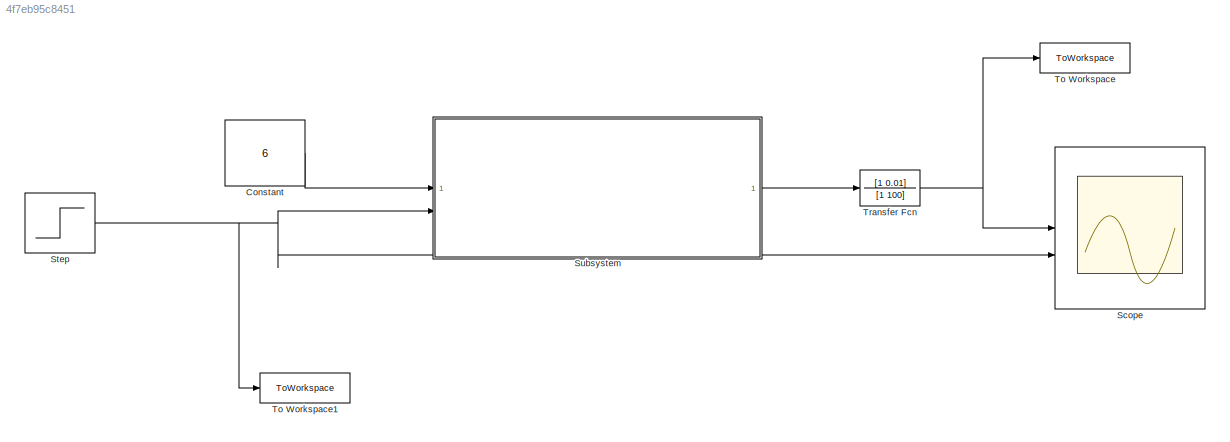
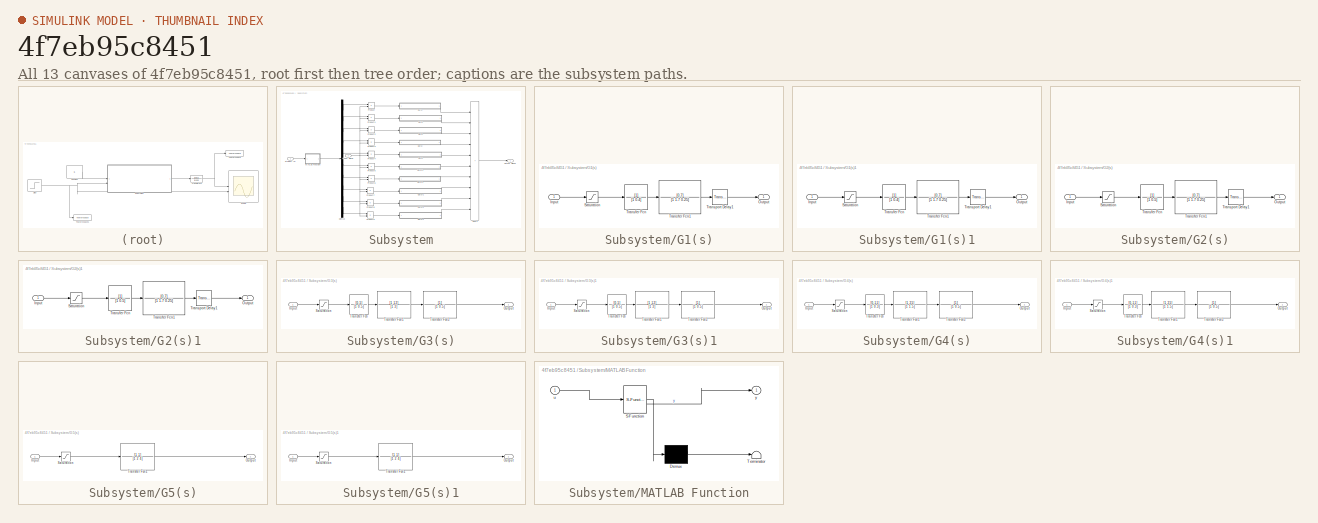
[diagram: thumbnail index - all 13 canvases of the model, root first then tree order]
MODEL slx_4f7eb95c8451
KIND model
CONFIG AbsTol = auto
CONFIG EnableMultiTasking = off
CONFIG FixedStep = auto
CONFIG MaxStep = 0.001
CONFIG MinStep = auto
CONFIG RelTol = 1e-3
CONFIG SampleTimeConstraint = Unconstrained
CONFIG SolverName = ode45
CONFIG StartTime = 0.0
CONFIG StopTime = 500
BLOCK [Constant] Constant
  Value = 6
BLOCK [Scope] Scope
  Floating = off
  NumInputPorts = 2
  ScopeSpecificationString = Simulink.scopes.TimeScopeBlockCfg('CurrentConfiguration', extmgr.ConfigurationSet(extmgr.Configuration('Core','General UI',true),extmgr.Configuration('Core','Source UI',true),extmgr.Configuration('Sources','WiredSimulink',true),extmgr.Configuration('Visuals','Time Domain',true,'SerializedDisplays',{struct('MinYLimReal','-0.71869','MaxYLimReal','5.61644','YLabelReal','','MinYLimMag','0.00000','MaxY...<+1996ch>
BLOCK [Step] Step
  SampleTime = 0
  Time = 0
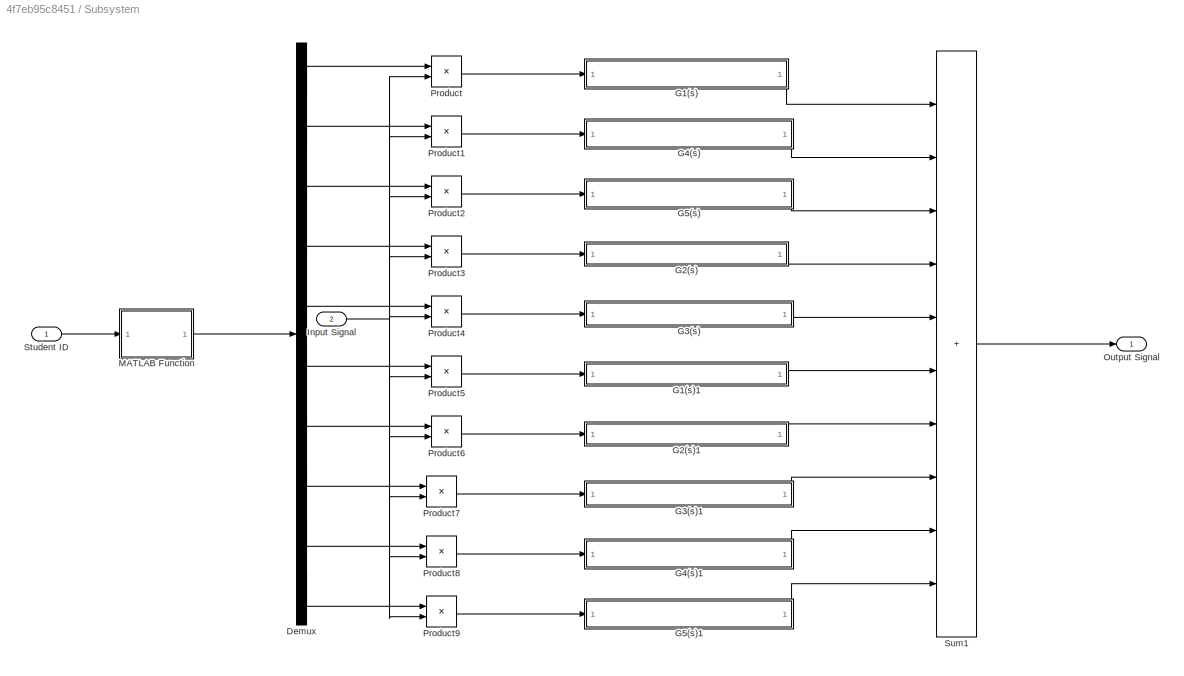
BLOCK [SubSystem] Subsystem
  Permissions = NoReadOrWrite
BLOCK [Demux] Subsystem/Demux
  Outputs = 10
BLOCK [SubSystem] Subsystem/G1(s)
  Permissions = NoReadOrWrite
BLOCK [Inport] Subsystem/G1(s)/Input
BLOCK [Outport] Subsystem/G1(s)/Output
BLOCK [Saturate] Subsystem/G1(s)/Saturation
  LowerLimit = -2
  UpperLimit = 2.8
BLOCK [TransferFcn] Subsystem/G1(s)/Transfer Fcn
  Denominator = [1 0.4]
BLOCK [TransferFcn] Subsystem/G1(s)/Transfer Fcn1
  Denominator = [1 1.7 0.25]
  Numerator = [0.7]
BLOCK [TransportDelay] Subsystem/G1(s)/Transport Delay1
  DelayTime = 0.1
BLOCK [SubSystem] Subsystem/G1(s)1
  Permissions = NoReadOrWrite
BLOCK [Inport] Subsystem/G1(s)1/Input
BLOCK [Outport] Subsystem/G1(s)1/Output
BLOCK [Saturate] Subsystem/G1(s)1/Saturation
  LowerLimit = -2
  UpperLimit = 2.8
BLOCK [TransferFcn] Subsystem/G1(s)1/Transfer Fcn
  Denominator = [1 0.4]
BLOCK [TransferFcn] Subsystem/G1(s)1/Transfer Fcn1
  Denominator = [1 1.7 0.25]
  Numerator = [0.7]
BLOCK [TransportDelay] Subsystem/G1(s)1/Transport Delay1
  DelayTime = 0.1
BLOCK [SubSystem] Subsystem/G2(s)
  Permissions = NoReadOrWrite
BLOCK [Inport] Subsystem/G2(s)/Input
BLOCK [Outport] Subsystem/G2(s)/Output
BLOCK [Saturate] Subsystem/G2(s)/Saturation
  LowerLimit = -2
  UpperLimit = 2.8
BLOCK [TransferFcn] Subsystem/G2(s)/Transfer Fcn
  Denominator = [1 0.5]
BLOCK [TransferFcn] Subsystem/G2(s)/Transfer Fcn1
  Denominator = [1 1.7 0.25]
  Numerator = [0.7]
BLOCK [TransportDelay] Subsystem/G2(s)/Transport Delay1
  DelayTime = 0.15
BLOCK [SubSystem] Subsystem/G2(s)1
  Permissions = NoReadOrWrite
BLOCK [Inport] Subsystem/G2(s)1/Input
BLOCK [Outport] Subsystem/G2(s)1/Output
BLOCK [Saturate] Subsystem/G2(s)1/Saturation
  LowerLimit = -2
  UpperLimit = 2.8
BLOCK [TransferFcn] Subsystem/G2(s)1/Transfer Fcn
  Denominator = [1 0.5]
BLOCK [TransferFcn] Subsystem/G2(s)1/Transfer Fcn1
  Denominator = [1 1.7 0.25]
  Numerator = [0.7]
BLOCK [TransportDelay] Subsystem/G2(s)1/Transport Delay1
  DelayTime = 0.15
BLOCK [SubSystem] Subsystem/G3(s)
  Permissions = NoReadOrWrite
BLOCK [Inport] Subsystem/G3(s)/Input
BLOCK [Outport] Subsystem/G3(s)/Output
BLOCK [Saturate] Subsystem/G3(s)/Saturation
  LowerLimit = -2
  UpperLimit = 2.8
BLOCK [TransferFcn] Subsystem/G3(s)/Transfer Fcn
  Denominator = [1 0.5]
  Numerator = [0.5]
BLOCK [TransferFcn] Subsystem/G3(s)/Transfer Fcn1
  Denominator = [1 2]
  Numerator = [1 12]
BLOCK [TransferFcn] Subsystem/G3(s)/Transfer Fcn2
  Denominator = [1 0.5]
BLOCK [SubSystem] Subsystem/G3(s)1
  Permissions = NoReadOrWrite
BLOCK [Inport] Subsystem/G3(s)1/Input
BLOCK [Outport] Subsystem/G3(s)1/Output
BLOCK [Saturate] Subsystem/G3(s)1/Saturation
  LowerLimit = -2
  UpperLimit = 2.8
BLOCK [TransferFcn] Subsystem/G3(s)1/Transfer Fcn
  Denominator = [1 0.5]
  Numerator = [0.5]
BLOCK [TransferFcn] Subsystem/G3(s)1/Transfer Fcn1
  Denominator = [1 2]
  Numerator = [1 12]
BLOCK [TransferFcn] Subsystem/G3(s)1/Transfer Fcn2
  Denominator = [1 0.5]
BLOCK [SubSystem] Subsystem/G4(s)
  Permissions = NoReadOrWrite
BLOCK [Inport] Subsystem/G4(s)/Input
BLOCK [Outport] Subsystem/G4(s)/Output
BLOCK [Saturate] Subsystem/G4(s)/Saturation
  LowerLimit = -2
  UpperLimit = 2.8
BLOCK [TransferFcn] Subsystem/G4(s)/Transfer Fcn
  Denominator = [1 0.3]
  Numerator = [0.11]
BLOCK [TransferFcn] Subsystem/G4(s)/Transfer Fcn1
  Denominator = [1 1.5]
  Numerator = [1 25]
BLOCK [TransferFcn] Subsystem/G4(s)/Transfer Fcn2
  Denominator = [1 0.5]
BLOCK [SubSystem] Subsystem/G4(s)1
  Permissions = NoReadOrWrite
BLOCK [Inport] Subsystem/G4(s)1/Input
BLOCK [Outport] Subsystem/G4(s)1/Output
BLOCK [Saturate] Subsystem/G4(s)1/Saturation
  LowerLimit = -2
  UpperLimit = 2.8
BLOCK [TransferFcn] Subsystem/G4(s)1/Transfer Fcn
  Denominator = [1 0.3]
  Numerator = [0.11]
BLOCK [TransferFcn] Subsystem/G4(s)1/Transfer Fcn1
  Denominator = [1 1.5]
  Numerator = [1 25]
BLOCK [TransferFcn] Subsystem/G4(s)1/Transfer Fcn2
  Denominator = [1 0.5]
BLOCK [SubSystem] Subsystem/G5(s)
  Permissions = NoReadOrWrite
BLOCK [Inport] Subsystem/G5(s)/Input
BLOCK [Outport] Subsystem/G5(s)/Output
BLOCK [Saturate] Subsystem/G5(s)/Saturation
  LowerLimit = -2
  UpperLimit = 2.8
BLOCK [TransferFcn] Subsystem/G5(s)/Transfer Fcn1
  Denominator = [1 2 4]
  Numerator = [1 1]
BLOCK [SubSystem] Subsystem/G5(s)1
  Permissions = NoReadOrWrite
BLOCK [Inport] Subsystem/G5(s)1/Input
BLOCK [Outport] Subsystem/G5(s)1/Output
BLOCK [Saturate] Subsystem/G5(s)1/Saturation
  LowerLimit = -2
  UpperLimit = 2.8
BLOCK [TransferFcn] Subsystem/G5(s)1/Transfer Fcn1
  Denominator = [1 2 4]
  Numerator = [1 1]
BLOCK [Inport] Subsystem/Input Signal
  Port = 2
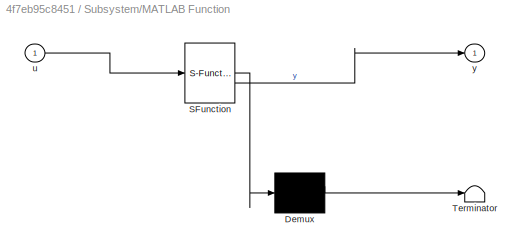
BLOCK [SubSystem] Subsystem/MATLAB Function
  ErrorFcn = Stateflow.Translate.translate
  LibrarySourceBlock = simulink/User-Defined\nFunctions/MATLAB Function
  PermitHierarchicalResolution = ExplicitOnly
  SFBlockType = MATLAB Function
  TreatAsAtomicUnit = on
BLOCK [Demux] Subsystem/MATLAB Function/ Demux 
  Outputs = 1
BLOCK [S-Function] Subsystem/MATLAB Function/ SFunction 
  EnableBusSupport = on
  FunctionName = sf_sfun
  PortCounts = [1 2]
  SFcnIsStateOwnerBlock = off
  SFunctionDeploymentMode = off
  Tag = Stateflow S-Function 2
BLOCK [Terminator] Subsystem/MATLAB Function/ Terminator 
BLOCK [Inport] Subsystem/MATLAB Function/u
BLOCK [Outport] Subsystem/MATLAB Function/y
BLOCK [Outport] Subsystem/Output Signal
BLOCK [Product] Subsystem/Product
BLOCK [Product] Subsystem/Product1
BLOCK [Product] Subsystem/Product2
BLOCK [Product] Subsystem/Product3
BLOCK [Product] Subsystem/Product4
BLOCK [Product] Subsystem/Product5
BLOCK [Product] Subsystem/Product6
BLOCK [Product] Subsystem/Product7
BLOCK [Product] Subsystem/Product8
BLOCK [Product] Subsystem/Product9
BLOCK [Inport] Subsystem/Student ID
BLOCK [Sum] Subsystem/Sum1
  IconShape = rectangular
  Inputs = ++++++++++
BLOCK [ToWorkspace] To Workspace
  FixptAsFi = on
  MaxDataPoints = inf
  SampleTime = -1
  Save2DSignal = 2-D array (concatenate along first dimension)
  VariableName = sigout
BLOCK [ToWorkspace] To Workspace1
  FixptAsFi = on
  MaxDataPoints = inf
  SampleTime = -1
  Save2DSignal = 2-D array (concatenate along first dimension)
  VariableName = sigin
BLOCK [TransferFcn] Transfer Fcn
  Denominator = [1 100]
  Numerator = [1 0.01]
LINE Constant:1 -> Subsystem:1
NET Step:1 -> Scope:2, Subsystem:2, To Workspace1:1
LINE Subsystem/Demux:1 -> Subsystem/Product:1
LINE Subsystem/Demux:10 -> Subsystem/Product9:1
LINE Subsystem/Demux:2 -> Subsystem/Product1:1
LINE Subsystem/Demux:3 -> Subsystem/Product2:1
LINE Subsystem/Demux:4 -> Subsystem/Product3:1
LINE Subsystem/Demux:5 -> Subsystem/Product4:1
LINE Subsystem/Demux:6 -> Subsystem/Product5:1
LINE Subsystem/Demux:7 -> Subsystem/Product6:1
LINE Subsystem/Demux:8 -> Subsystem/Product7:1
LINE Subsystem/Demux:9 -> Subsystem/Product8:1
LINE Subsystem/G1(s)/Input:1 -> Subsystem/G1(s)/Saturation:1
LINE Subsystem/G1(s)/Saturation:1 -> Subsystem/G1(s)/Transfer Fcn:1
LINE Subsystem/G1(s)/Transfer Fcn1:1 -> Subsystem/G1(s)/Transport Delay1:1
LINE Subsystem/G1(s)/Transfer Fcn:1 -> Subsystem/G1(s)/Transfer Fcn1:1
LINE Subsystem/G1(s)/Transport Delay1:1 -> Subsystem/G1(s)/Output:1
LINE Subsystem/G1(s)1/Input:1 -> Subsystem/G1(s)1/Saturation:1
LINE Subsystem/G1(s)1/Saturation:1 -> Subsystem/G1(s)1/Transfer Fcn:1
LINE Subsystem/G1(s)1/Transfer Fcn1:1 -> Subsystem/G1(s)1/Transport Delay1:1
LINE Subsystem/G1(s)1/Transfer Fcn:1 -> Subsystem/G1(s)1/Transfer Fcn1:1
LINE Subsystem/G1(s)1/Transport Delay1:1 -> Subsystem/G1(s)1/Output:1
LINE Subsystem/G1(s)1:1 -> Subsystem/Sum1:6
LINE Subsystem/G1(s):1 -> Subsystem/Sum1:1
LINE Subsystem/G2(s)/Input:1 -> Subsystem/G2(s)/Saturation:1
LINE Subsystem/G2(s)/Saturation:1 -> Subsystem/G2(s)/Transfer Fcn:1
LINE Subsystem/G2(s)/Transfer Fcn1:1 -> Subsystem/G2(s)/Transport Delay1:1
LINE Subsystem/G2(s)/Transfer Fcn:1 -> Subsystem/G2(s)/Transfer Fcn1:1
LINE Subsystem/G2(s)/Transport Delay1:1 -> Subsystem/G2(s)/Output:1
LINE Subsystem/G2(s)1/Input:1 -> Subsystem/G2(s)1/Saturation:1
LINE Subsystem/G2(s)1/Saturation:1 -> Subsystem/G2(s)1/Transfer Fcn:1
LINE Subsystem/G2(s)1/Transfer Fcn1:1 -> Subsystem/G2(s)1/Transport Delay1:1
LINE Subsystem/G2(s)1/Transfer Fcn:1 -> Subsystem/G2(s)1/Transfer Fcn1:1
LINE Subsystem/G2(s)1/Transport Delay1:1 -> Subsystem/G2(s)1/Output:1
LINE Subsystem/G2(s)1:1 -> Subsystem/Sum1:7
LINE Subsystem/G2(s):1 -> Subsystem/Sum1:4
LINE Subsystem/G3(s)/Input:1 -> Subsystem/G3(s)/Saturation:1
LINE Subsystem/G3(s)/Saturation:1 -> Subsystem/G3(s)/Transfer Fcn:1
LINE Subsystem/G3(s)/Transfer Fcn1:1 -> Subsystem/G3(s)/Transfer Fcn2:1
LINE Subsystem/G3(s)/Transfer Fcn2:1 -> Subsystem/G3(s)/Output:1
LINE Subsystem/G3(s)/Transfer Fcn:1 -> Subsystem/G3(s)/Transfer Fcn1:1
LINE Subsystem/G3(s)1/Input:1 -> Subsystem/G3(s)1/Saturation:1
LINE Subsystem/G3(s)1/Saturation:1 -> Subsystem/G3(s)1/Transfer Fcn:1
LINE Subsystem/G3(s)1/Transfer Fcn1:1 -> Subsystem/G3(s)1/Transfer Fcn2:1
LINE Subsystem/G3(s)1/Transfer Fcn2:1 -> Subsystem/G3(s)1/Output:1
LINE Subsystem/G3(s)1/Transfer Fcn:1 -> Subsystem/G3(s)1/Transfer Fcn1:1
LINE Subsystem/G3(s)1:1 -> Subsystem/Sum1:8
LINE Subsystem/G3(s):1 -> Subsystem/Sum1:5
LINE Subsystem/G4(s)/Input:1 -> Subsystem/G4(s)/Saturation:1
LINE Subsystem/G4(s)/Saturation:1 -> Subsystem/G4(s)/Transfer Fcn:1
LINE Subsystem/G4(s)/Transfer Fcn1:1 -> Subsystem/G4(s)/Transfer Fcn2:1
LINE Subsystem/G4(s)/Transfer Fcn2:1 -> Subsystem/G4(s)/Output:1
LINE Subsystem/G4(s)/Transfer Fcn:1 -> Subsystem/G4(s)/Transfer Fcn1:1
LINE Subsystem/G4(s)1/Input:1 -> Subsystem/G4(s)1/Saturation:1
LINE Subsystem/G4(s)1/Saturation:1 -> Subsystem/G4(s)1/Transfer Fcn:1
LINE Subsystem/G4(s)1/Transfer Fcn1:1 -> Subsystem/G4(s)1/Transfer Fcn2:1
LINE Subsystem/G4(s)1/Transfer Fcn2:1 -> Subsystem/G4(s)1/Output:1
LINE Subsystem/G4(s)1/Transfer Fcn:1 -> Subsystem/G4(s)1/Transfer Fcn1:1
LINE Subsystem/G4(s)1:1 -> Subsystem/Sum1:9
LINE Subsystem/G4(s):1 -> Subsystem/Sum1:2
LINE Subsystem/G5(s)/Input:1 -> Subsystem/G5(s)/Saturation:1
LINE Subsystem/G5(s)/Saturation:1 -> Subsystem/G5(s)/Transfer Fcn1:1
LINE Subsystem/G5(s)/Transfer Fcn1:1 -> Subsystem/G5(s)/Output:1
LINE Subsystem/G5(s)1/Input:1 -> Subsystem/G5(s)1/Saturation:1
LINE Subsystem/G5(s)1/Saturation:1 -> Subsystem/G5(s)1/Transfer Fcn1:1
LINE Subsystem/G5(s)1/Transfer Fcn1:1 -> Subsystem/G5(s)1/Output:1
LINE Subsystem/G5(s)1:1 -> Subsystem/Sum1:10
LINE Subsystem/G5(s):1 -> Subsystem/Sum1:3
NET Subsystem/Input Signal:1 -> Subsystem/Product1:2, Subsystem/Product2:2, Subsystem/Product3:2, Subsystem/Product4:2, Subsystem/Product5:2, Subsystem/Product6:2, Subsystem/Product7:2, Subsystem/Product8:2, Subsystem/Product9:2, Subsystem/Product:2
LINE Subsystem/MATLAB Function:1 -> Subsystem/Demux:1
LINE Subsystem/Product1:1 -> Subsystem/G4(s):1
LINE Subsystem/Product2:1 -> Subsystem/G5(s):1
LINE Subsystem/Product3:1 -> Subsystem/G2(s):1
LINE Subsystem/Product4:1 -> Subsystem/G3(s):1
LINE Subsystem/Product5:1 -> Subsystem/G1(s)1:1
LINE Subsystem/Product6:1 -> Subsystem/G2(s)1:1
LINE Subsystem/Product7:1 -> Subsystem/G3(s)1:1
LINE Subsystem/Product8:1 -> Subsystem/G4(s)1:1
LINE Subsystem/Product9:1 -> Subsystem/G5(s)1:1
LINE Subsystem/Product:1 -> Subsystem/G1(s):1
LINE Subsystem/Student ID:1 -> Subsystem/MATLAB Function:1
LINE Subsystem/Sum1:1 -> Subsystem/Output Signal:1
LINE Subsystem:1 -> Transfer Fcn:1
NET Transfer Fcn:1 -> Scope:1, To Workspace:1
note: NET lines group one-source signal fan-out (src -> all destinations, sorted); 1:1 wires keep LINE
CHART Subsystem/MATLAB Function states=1 transitions=1
  STATE_LABEL 'eML_blk_kernel()'
  STATE_LABEL 'SCRIPT:\nfunction y = fcn(u)\n    y = zeros(10,1);\n    y(u+1) = 1;\n'
CHART  states=0 transitions=0
